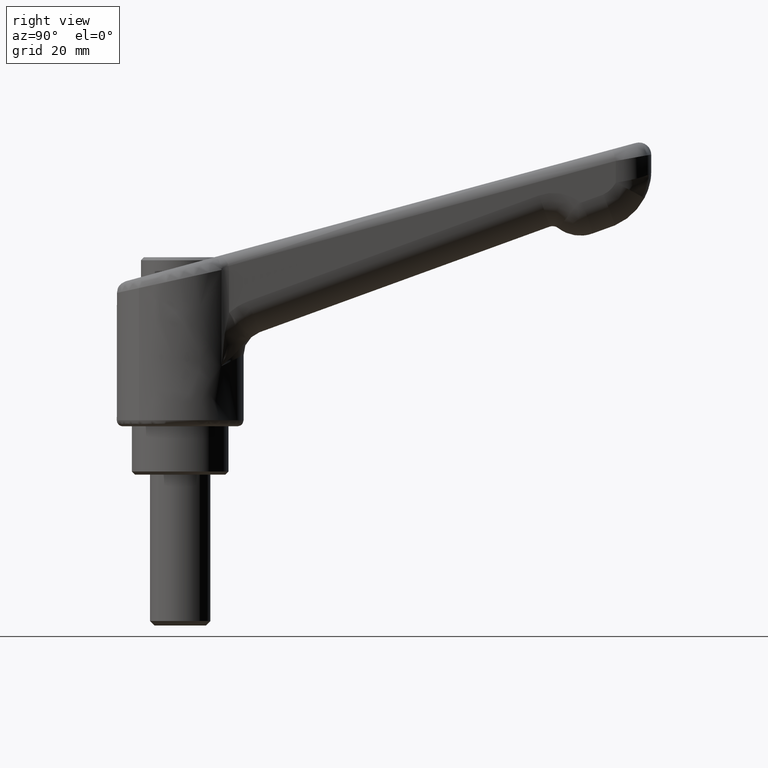
[diagram: clean part render]
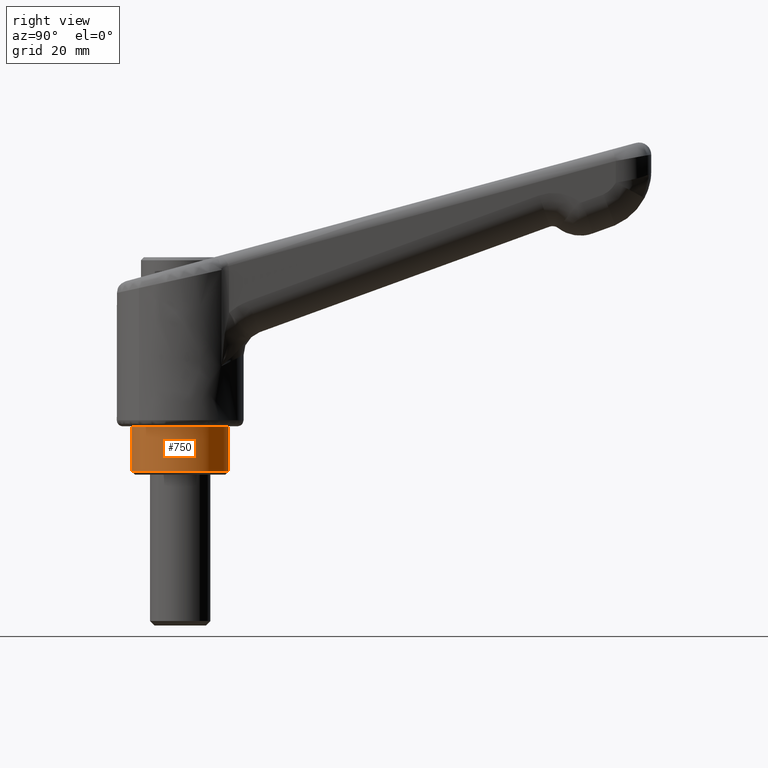
[diagram: same view with one face highlighted and labeled with its STEP entity id]
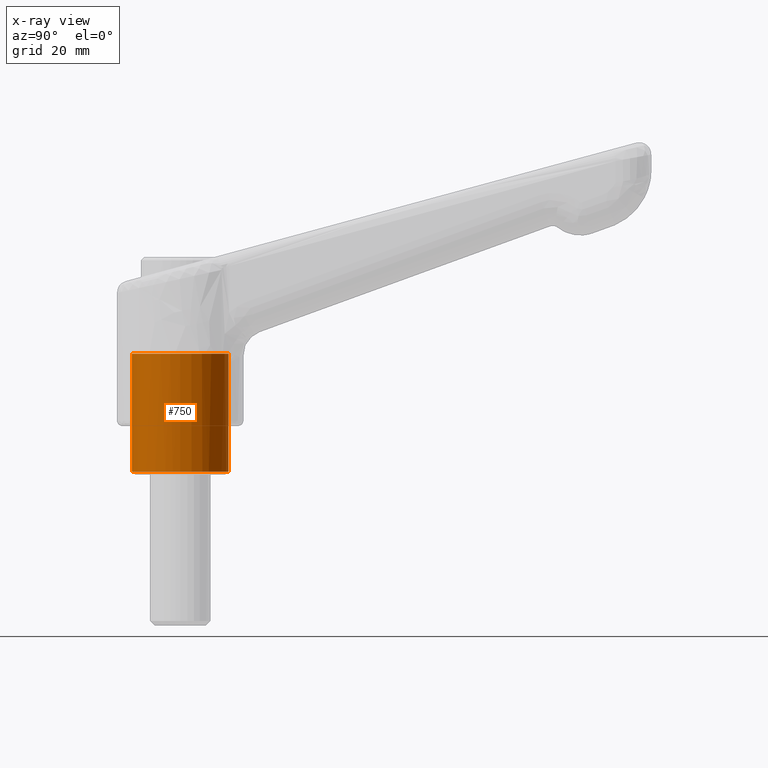
[diagram: x-ray of the same camera — body ghosted, the highlighted face saturated]
A machine part, right view. The second image highlights one B-rep face of the part: STEP entity #750.
The next image is the same camera in x-ray: the body ghosted, the highlighted face saturated — about 0% of this face is hidden behind the body in this view.
In plain terms, the highlighted face is a freeform B-spline surface patch.
Its self-contained STEP definition (entity closure, byte-faithful):
#453=CARTESIAN_POINT('',(5.706003802999073,-5.607274320534575,-7.499999901967208));
#454=VERTEX_POINT('',#453);
#460=CARTESIAN_POINT('',(0.000000784380531,-7.999999999999962,-7.499999999999841));
#461=VERTEX_POINT('',#460);
#462=CARTESIAN_POINT('',(0.000000784380531,-7.999999999999962,-7.499999999999841));
#463=CARTESIAN_POINT('',(0.794168251850671,-8.000341045177407,-7.499999986355564));
#464=CARTESIAN_POINT('',(2.084398255410891,-7.806229949860223,-7.499999964188602));
#465=CARTESIAN_POINT('',(3.651386546819170,-7.160386044208345,-7.499999937266799));
#466=CARTESIAN_POINT('',(4.777008260279263,-6.457205117968575,-7.499999917927920));
#467=CARTESIAN_POINT('',(5.404526499467328,-5.914099567514826,-7.499999907146781));
#468=CARTESIAN_POINT('',(5.706003802999073,-5.607274320534575,-7.499999901967208));
#469=B_SPLINE_CURVE_WITH_KNOTS('',3,(#462,#463,#464,#465,#466,#467,#468),.UNSPECIFIED.,.F.,.U.,(4,1,1,1,4),(0.000000016161139,2.382390151962577,3.871377510544373,5.062581078185162,6.353038562660901),.UNSPECIFIED.);
#470=EDGE_CURVE('',#461,#454,#469,.T.);
#472=CARTESIAN_POINT('',(-5.607273908262691,-5.706003383468151,-7.500000098032476));
#473=VERTEX_POINT('',#472);
#474=CARTESIAN_POINT('',(-5.607273908262691,-5.706003383468151,-7.500000098032476));
#475=CARTESIAN_POINT('',(-5.030493912380685,-6.273421592959000,-7.500000087948555));
#476=CARTESIAN_POINT('',(-4.047898662292758,-6.981452889589998,-7.500000070769756));
#477=CARTESIAN_POINT('',(-2.643484066858217,-7.575889818835579,-7.500000046216194));
#478=CARTESIAN_POINT('',(-1.423869882862046,-7.909498291561046,-7.500000024893533));
#479=CARTESIAN_POINT('',(-0.550150142091550,-8.000079540476696,-7.500000009618193));
#480=CARTESIAN_POINT('',(0.000000784380531,-7.999999999999962,-7.499999999999841));
#481=B_SPLINE_CURVE_WITH_KNOTS('',3,(#474,#475,#476,#477,#478,#479,#480),.UNSPECIFIED.,.F.,.U.,(4,1,1,1,4),(0.000000018097317,2.427117039879355,3.592118467847384,4.562972374290682,6.213410932012828),.UNSPECIFIED.);
#482=EDGE_CURVE('',#473,#461,#481,.T.);
#527=CARTESIAN_POINT('',(-8.0,0.0,-7.499999999999840));
#528=VERTEX_POINT('',#527);
#529=CARTESIAN_POINT('',(-8.0,0.0,-7.499999999999840));
#530=CARTESIAN_POINT('',(-8.000021070500347,-0.430148983303587,-7.500000007390073));
#531=CARTESIAN_POINT('',(-7.922452336129848,-1.389720913038322,-7.500000023876080));
#532=CARTESIAN_POINT('',(-7.519933251121459,-2.899842886901624,-7.500000049820922));
#533=CARTESIAN_POINT('',(-6.748521431130135,-4.412571750951565,-7.500000075810573));
#534=CARTESIAN_POINT('',(-6.008545943585602,-5.311796217569479,-7.500000091259715));
#535=CARTESIAN_POINT('',(-5.607273908262691,-5.706003383468151,-7.500000098032476));
#536=B_SPLINE_CURVE_WITH_KNOTS('',3,(#529,#530,#531,#532,#533,#534,#535),.UNSPECIFIED.,.F.,.U.,(4,1,1,1,4),(0.000000016153991,1.290457612520107,2.878735924920342,4.665512697021319,6.353039113504591),.UNSPECIFIED.);
#537=EDGE_CURVE('',#528,#473,#536,.T.);
#539=CARTESIAN_POINT('',(-5.404721806506046,5.898218826040690,-7.499999999999840));
#540=VERTEX_POINT('',#539);
#541=CARTESIAN_POINT('',(-5.404721806506046,5.898218826040690,-7.499999999999840));
#542=CARTESIAN_POINT('',(-5.837763749703142,5.501571196915939,-7.499999999999849));
#543=CARTESIAN_POINT('',(-6.501329617453791,4.743033724755626,-7.499999999999825));
#544=CARTESIAN_POINT('',(-7.255913956192699,3.458420225791670,-7.499999999999866));
#545=CARTESIAN_POINT('',(-7.834399120358627,1.934290092638792,-7.499999999999819));
#546=CARTESIAN_POINT('',(-8.000236943772190,0.725428017172848,-7.499999999999850));
#547=CARTESIAN_POINT('',(-8.0,0.0,-7.499999999999840));
#548=B_SPLINE_CURVE_WITH_KNOTS('',3,(#541,#542,#543,#544,#545,#546,#547),.UNSPECIFIED.,.F.,.U.,(4,1,1,1,4),(0.000000015297632,1.761705438322648,3.005273455518432,4.456074452219696,6.632297586585974),.UNSPECIFIED.);
#549=EDGE_CURVE('',#540,#528,#548,.T.);
#563=CARTESIAN_POINT('',(5.579455831182466,5.733207609316159,-7.499999999999840));
#564=VERTEX_POINT('',#563);
#575=CARTESIAN_POINT('',(8.0,0.0,-7.499999999999840));
#576=VERTEX_POINT('',#575);
#577=CARTESIAN_POINT('',(8.0,0.0,-7.499999999999840));
#578=CARTESIAN_POINT('',(8.000068846239458,0.565950189238798,-7.499999999999835));
#579=CARTESIAN_POINT('',(7.868825381322615,1.797719665658954,-7.499999999999835));
#580=CARTESIAN_POINT('',(7.303011928410781,3.412550776610124,-7.499999999999859));
#581=CARTESIAN_POINT('',(6.482774173365293,4.752078794064798,-7.499999999999806));
#582=CARTESIAN_POINT('',(5.889626917942263,5.431386408671740,-7.499999999999887));
#583=CARTESIAN_POINT('',(5.579455831182466,5.733207609316159,-7.499999999999840));
#584=B_SPLINE_CURVE_WITH_KNOTS('',3,(#577,#578,#579,#580,#581,#582,#583),.UNSPECIFIED.,.F.,.U.,(4,1,1,1,4),(0.000000016648031,1.697861881862222,3.695332286894931,5.093587905728430,6.391949009563752),.UNSPECIFIED.);
#585=EDGE_CURVE('',#576,#564,#584,.T.);
#587=CARTESIAN_POINT('',(5.706003802999073,-5.607274320534575,-7.499999901967208));
#588=CARTESIAN_POINT('',(6.227946492304177,-5.076576347645340,-7.499999911245443));
#589=CARTESIAN_POINT('',(6.869026707082463,-4.209545137834734,-7.499999926403910));
#590=CARTESIAN_POINT('',(7.458811181112577,-2.946330687070034,-7.499999948488792));
#591=CARTESIAN_POINT('',(7.871351824809525,-1.682708535097491,-7.499999970580856));
#592=CARTESIAN_POINT('',(8.000221006072628,-0.679616429793272,-7.499999988118027));
#593=CARTESIAN_POINT('',(8.0,0.0,-7.499999999999840));
#594=B_SPLINE_CURVE_WITH_KNOTS('',3,(#587,#588,#589,#590,#591,#592,#593),.UNSPECIFIED.,.F.,.U.,(4,1,1,1,4),(0.000000018090603,2.232952896356040,3.203779945511519,4.174630022422205,6.213410376036736),.UNSPECIFIED.);
#595=EDGE_CURVE('',#454,#576,#594,.T.);
#645=CARTESIAN_POINT('',(5.579455939122908,5.733207777796483,12.487500000000221));
#646=CARTESIAN_POINT('',(5.743537882570785,5.573526145915184,12.487500000000223));
#647=CARTESIAN_POINT('',(5.898218694480991,5.404721660925280,12.487500000000219));
#648=CARTESIAN_POINT('',(11.302940355406271,-0.493497033555711,12.487500000000219));
#649=CARTESIAN_POINT('',(5.404721660925280,-5.898218694480991,12.487500000000219));
#650=CARTESIAN_POINT('',(-0.493497033555711,-11.302940355406271,12.487500000000219));
#651=CARTESIAN_POINT('',(-5.898218694480991,-5.404721660925280,12.487500000000219));
#652=CARTESIAN_POINT('',(-11.302940355406271,0.493497033555711,12.487500000000225));
#653=CARTESIAN_POINT('',(-5.404721660925280,5.898218694480991,12.487500000000230));
#654=CARTESIAN_POINT('',(5.579455939122908,5.733207777796483,-7.999687499999846));
#655=CARTESIAN_POINT('',(5.743537882570785,5.573526145915184,-7.999687499999847));
#656=CARTESIAN_POINT('',(5.898218694480991,5.404721660925280,-7.999687499999846));
#657=CARTESIAN_POINT('',(11.302940355406271,-0.493497033555711,-7.999687499999848));
#658=CARTESIAN_POINT('',(5.404721660925280,-5.898218694480991,-7.999687499999847));
#659=CARTESIAN_POINT('',(-0.493497033555711,-11.302940355406271,-7.999687499999848));
#660=CARTESIAN_POINT('',(-5.898218694480991,-5.404721660925280,-7.999687499999846));
#661=CARTESIAN_POINT('',(-11.302940355406271,0.493497033555711,-7.999687499999844));
#662=CARTESIAN_POINT('',(-5.404721660925280,5.898218694480991,-7.999687499999845));
#670=(BOUNDED_SURFACE()B_SPLINE_SURFACE(2,1,((#645,#654),(#646,#655),(#647,#656),(#648,#657),(#649,#658),(#650,#659),(#651,#660),(#652,#661),(#653,#662)),.UNSPECIFIED.,.F.,.F.,.U.)B_SPLINE_SURFACE_WITH_KNOTS((3,2,2,2,3),(2,2),(0.0,0.530193359837562,13.785027355776601,27.039861351715640,40.294695347654667),(0.0,20.487187500000068),.UNSPECIFIED.)GEOMETRIC_REPRESENTATION_ITEM()RATIONAL_B_SPLINE_SURFACE(((0.977505800795127,0.977505800795127),(0.988284271247462,0.988284271247462),(1.0,1.0),(0.707106781186548,0.707106781186548),(1.0,1.0),(0.707106781186548,0.707106781186548),(1.0,1.0),(0.707106781186548,0.707106781186548),(1.0,1.0)))REPRESENTATION_ITEM('')SURFACE());
#671=CARTESIAN_POINT('',(8.0,0.0,12.000000000000220));
#672=VERTEX_POINT('',#671);
#673=CARTESIAN_POINT('',(5.579455831524070,5.733207608983713,12.0));
#674=VERTEX_POINT('',#673);
#675=CARTESIAN_POINT('',(8.0,0.0,12.000000000000220));
#676=CARTESIAN_POINT('',(8.000391657592044,0.799047985236124,12.000000000000179));
#677=CARTESIAN_POINT('',(7.834029316121145,1.897421313074786,12.000000000000160));
#678=CARTESIAN_POINT('',(7.311227545555840,3.303892873125560,12.000000000000099));
#679=CARTESIAN_POINT('',(6.686493414866989,4.484131753419473,12.000000000000060));
#680=CARTESIAN_POINT('',(6.032877297119808,5.292155816907026,12.000000000000011));
#681=CARTESIAN_POINT('',(5.579455831524070,5.733207608983713,12.0));
#682=B_SPLINE_CURVE_WITH_KNOTS('',3,(#675,#676,#677,#678,#679,#680,#681),.UNSPECIFIED.,.F.,.U.,(4,1,1,1,4),(0.000000016648515,2.396981590698731,3.295840583785751,4.494335616614966,6.391949009087070),.UNSPECIFIED.);
#683=EDGE_CURVE('',#672,#674,#682,.T.);
#684=ORIENTED_EDGE('',*,*,#683,.F.);
#685=CARTESIAN_POINT('',(0.000000784380527,-7.999999999999963,12.000000000000220));
#686=VERTEX_POINT('',#685);
#687=CARTESIAN_POINT('',(0.000000784380527,-7.999999999999963,12.000000000000220));
#688=CARTESIAN_POINT('',(0.621782161248781,-8.000138091142244,12.000000000000210));
#689=CARTESIAN_POINT('',(1.734367972057524,-7.869607474547346,12.000000000000229));
#690=CARTESIAN_POINT('',(3.166869124123419,-7.386599999661790,12.000000000000220));
#691=CARTESIAN_POINT('',(4.208661222756482,-6.829689832476324,12.000000000000229));
#692=CARTESIAN_POINT('',(5.142465873870414,-6.163448556523204,12.000000000000201));
#693=CARTESIAN_POINT('',(5.975063155307351,-5.370769691358931,12.000000000000330));
#694=CARTESIAN_POINT('',(6.670454767613472,-4.456750281628483,12.000000000000130));
#695=CARTESIAN_POINT('',(7.209331439232482,-3.518966493711615,12.000000000000240));
#696=CARTESIAN_POINT('',(7.648870261459901,-2.457907441786786,12.000000000000250));
#697=CARTESIAN_POINT('',(7.937254934746325,-1.243537343750666,12.000000000000210));
#698=CARTESIAN_POINT('',(8.000014502737724,-0.392690116279550,12.000000000000229));
#699=CARTESIAN_POINT('',(8.0,0.0,12.000000000000220));
#700=B_SPLINE_CURVE_WITH_KNOTS('',3,(#687,#688,#689,#690,#691,#692,#693,#694,#695,#696,#697,#698,#699),.UNSPECIFIED.,.F.,.U.,(4,1,1,1,1,1,1,1,1,1,4),(0.000000057113876,1.865321811852919,3.337963853514225,4.516083242485012,5.399656109434777,6.774070057848543,7.952190971702693,8.835777022704340,10.013896536163861,11.388369416989731,12.566449020909520),.UNSPECIFIED.);
#701=EDGE_CURVE('',#686,#672,#700,.T.);
#702=ORIENTED_EDGE('',*,*,#701,.F.);
#703=CARTESIAN_POINT('',(-8.0,0.0,12.000000000000220));
#704=VERTEX_POINT('',#703);
#705=CARTESIAN_POINT('',(-8.0,0.0,12.000000000000220));
#706=CARTESIAN_POINT('',(-8.000423380696644,-0.818171580552904,12.000000000000240));
#707=CARTESIAN_POINT('',(-7.782166361865754,-2.225084513727452,12.000000000000190));
#708=CARTESIAN_POINT('',(-7.021581395235501,-3.940800783541046,12.000000000000250));
#709=CARTESIAN_POINT('',(-6.227156547620589,-5.068615088768425,12.000000000000160));
#710=CARTESIAN_POINT('',(-5.368079852020902,-5.970952990425069,12.000000000000259));
#711=CARTESIAN_POINT('',(-4.332358501141325,-6.779294383432791,12.000000000000179));
#712=CARTESIAN_POINT('',(-2.902143392160948,-7.521462392969566,12.000000000000270));
#713=CARTESIAN_POINT('',(-1.407180852445282,-7.925260069529700,12.000000000000190));
#714=CARTESIAN_POINT('',(-0.392686727598096,-8.000000102239593,12.000000000000229));
#715=CARTESIAN_POINT('',(0.000000784380527,-7.999999999999963,12.000000000000220));
#716=B_SPLINE_CURVE_WITH_KNOTS('',3,(#705,#706,#707,#708,#709,#710,#711,#712,#713,#714,#715),.UNSPECIFIED.,.F.,.U.,(4,1,1,1,1,1,1,1,4),(0.000000056841204,2.454377084693270,4.221552847054872,5.596013917101830,6.577718230358713,7.952191530976670,9.523014158462409,11.388370218384740,12.566449905094730),.UNSPECIFIED.);
#717=EDGE_CURVE('',#704,#686,#716,.T.);
#718=ORIENTED_EDGE('',*,*,#717,.F.);
#719=CARTESIAN_POINT('',(-5.404721806673198,5.898218825887525,12.000000000000989));
#720=VERTEX_POINT('',#719);
#721=CARTESIAN_POINT('',(-5.404721806673198,5.898218825887525,12.000000000000989));
#722=CARTESIAN_POINT('',(-5.888735803192179,5.454929296487451,12.000000000000931));
#723=CARTESIAN_POINT('',(-6.588514545784588,4.633695399199183,12.000000000000840));
#724=CARTESIAN_POINT('',(-7.242432066967730,3.451207733350051,12.000000000000680));
#725=CARTESIAN_POINT('',(-7.648523734321861,2.421531773044072,12.000000000000529));
#726=CARTESIAN_POINT('',(-7.927104696844300,1.312628794461776,12.000000000000430));
#727=CARTESIAN_POINT('',(-8.000034677725052,0.449059862381026,12.000000000000259));
#728=CARTESIAN_POINT('',(-8.0,0.0,12.000000000000220));
#729=B_SPLINE_CURVE_WITH_KNOTS('',3,(#721,#722,#723,#724,#725,#726,#727,#728),.UNSPECIFIED.,.F.,.U.,(4,1,1,1,1,4),(0.000000015298001,1.968966209706285,3.212525595424551,4.041545390307828,5.285114995237132,6.632297586359256),.UNSPECIFIED.);
#730=EDGE_CURVE('',#720,#704,#729,.T.);
#731=ORIENTED_EDGE('',*,*,#730,.F.);
#732=CARTESIAN_POINT('',(-5.404721806673198,5.898218825887525,12.000000000000989));
#733=CARTESIAN_POINT('',(-5.404721806506046,5.898218826040690,-7.499999999999840));
#734=QUASI_UNIFORM_CURVE('',1,(#732,#733),.UNSPECIFIED.,.F.,.U.);
#735=EDGE_CURVE('',#720,#540,#734,.T.);
#736=ORIENTED_EDGE('',*,*,#735,.T.);
#737=ORIENTED_EDGE('',*,*,#549,.T.);
#738=ORIENTED_EDGE('',*,*,#537,.T.);
#739=ORIENTED_EDGE('',*,*,#482,.T.);
#740=ORIENTED_EDGE('',*,*,#470,.T.);
#741=ORIENTED_EDGE('',*,*,#595,.T.);
#742=ORIENTED_EDGE('',*,*,#585,.T.);
#743=CARTESIAN_POINT('',(5.579455831524070,5.733207608983713,12.0));
#744=CARTESIAN_POINT('',(5.579455831182466,5.733207609316159,-7.499999999999840));
#745=QUASI_UNIFORM_CURVE('',1,(#743,#744),.UNSPECIFIED.,.F.,.U.);
#746=EDGE_CURVE('',#674,#564,#745,.T.);
#747=ORIENTED_EDGE('',*,*,#746,.F.);
#748=EDGE_LOOP('',(#684,#702,#718,#731,#736,#737,#738,#739,#740,#741,#742,#747));
#749=FACE_OUTER_BOUND('',#748,.T.);
#750=ADVANCED_FACE('',(#749),#670,.T.);